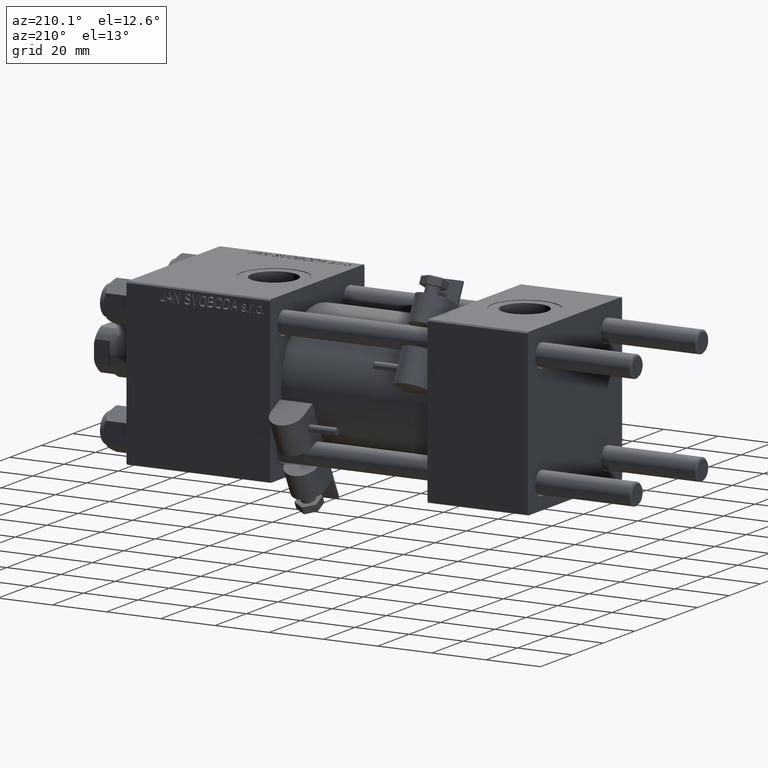
[diagram: clean part render]
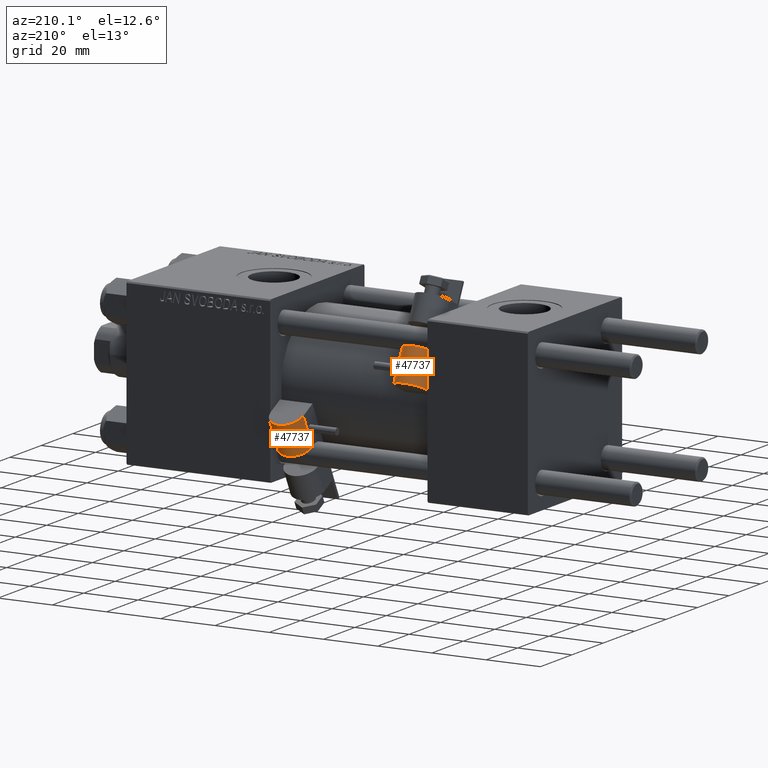
[diagram: same view with one multi-face feature highlighted, each face labeled with its STEP entity id]
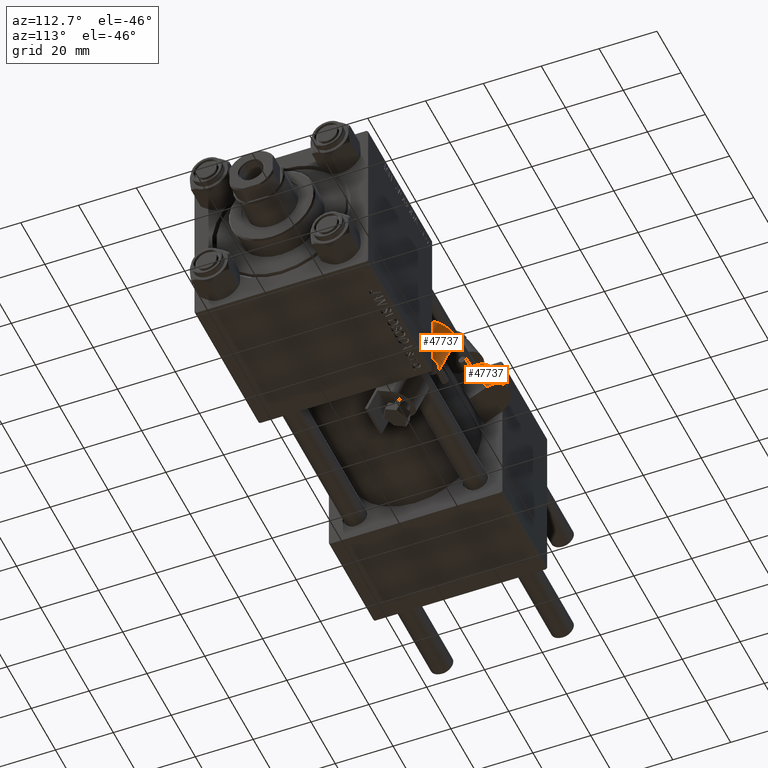
[diagram: same view with one multi-face feature highlighted, each face labeled with its STEP entity id]
A machine part, auxiliary view. The highlighted faces form ONE feature: a constant-radius fillet chain: 2 tangent blend faces with common blend radius 6 mm. The faces share edges in the B-rep.
A second angle (auxiliary view) of the same feature is appended — it is thin or edge-on in the first view.
Their STEP definitions:
[1] entity #47737 (Cylinder):
#692 = ORIENTED_EDGE ( 'NONE', *, *, #13905, .T. ) ;
#2031 = FACE_OUTER_BOUND ( 'NONE', #2946, .T. ) ;
#2946 = EDGE_LOOP ( 'NONE', ( #692, #18508, #50438, #24240 ) ) ;
#3751 = CARTESIAN_POINT ( 'NONE',  ( 30.23999999999999844, 6.500000000000000000, -5.999999999999980460 ) ) ;
#4156 = AXIS2_PLACEMENT_3D ( 'NONE', #33191, #29093, #13382 ) ;
#4977 = CARTESIAN_POINT ( 'NONE',  ( 17.73999999999999844, 6.500000000000000000, -5.999999999999980460 ) ) ;
#6452 = CARTESIAN_POINT ( 'NONE',  ( 30.23999999999999844, 6.500000000000000000, 2.255140518769849223E-14 ) ) ;
#7242 = CARTESIAN_POINT ( 'NONE',  ( 17.73999999999999844, 6.500000000000000000, 2.255140518769849223E-14 ) ) ;
#10668 = AXIS2_PLACEMENT_3D ( 'NONE', #7242, #46901, #43024 ) ;
#10765 = VERTEX_POINT ( 'NONE', #4977 ) ;
#13382 = DIRECTION ( 'NONE',  ( 0.000000000000000000, 0.000000000000000000, 1.000000000000000000 ) ) ;
#13905 = EDGE_CURVE ( 'NONE', #10765, #43345, #50154, .T. ) ;
#17550 = CARTESIAN_POINT ( 'NONE',  ( 17.73999999999999844, 6.499999999999999112, 6.000000000000006217 ) ) ;
#18508 = ORIENTED_EDGE ( 'NONE', *, *, #39719, .F. ) ;
#19980 = CARTESIAN_POINT ( 'NONE',  ( 30.23999999999999844, 6.500000000000000000, -5.999999999999980460 ) ) ;
#20096 = CARTESIAN_POINT ( 'NONE',  ( 30.23999999999999844, 6.499999999999999112, 6.000000000000006217 ) ) ;
#22927 = DIRECTION ( 'NONE',  ( 1.000000000000000000, 0.000000000000000000, 0.000000000000000000 ) ) ;
#23839 = DIRECTION ( 'NONE',  ( -1.000000000000000000, -0.000000000000000000, -0.000000000000000000 ) ) ;
#24240 = ORIENTED_EDGE ( 'NONE', *, *, #25517, .T. ) ;
#24287 = CARTESIAN_POINT ( 'NONE',  ( 30.23999999999999844, 6.499999999999999112, 6.000000000000006217 ) ) ;
#25429 = VERTEX_POINT ( 'NONE', #19980 ) ;
#25517 = EDGE_CURVE ( 'NONE', #25429, #10765, #35916, .T. ) ;
#29093 = DIRECTION ( 'NONE',  ( -1.000000000000000000, -0.000000000000000000, -0.000000000000000000 ) ) ;
#30396 = DIRECTION ( 'NONE',  ( 0.000000000000000000, 0.000000000000000000, -1.000000000000000000 ) ) ;
#33191 = CARTESIAN_POINT ( 'NONE',  ( 30.23999999999999844, 6.500000000000000000, 2.255140518769849223E-14 ) ) ;
#34744 = EDGE_CURVE ( 'NONE', #25429, #45205, #46640, .T. ) ;
#35782 = DIRECTION ( 'NONE',  ( -1.000000000000000000, -0.000000000000000000, -0.000000000000000000 ) ) ;
#35916 = LINE ( 'NONE', #3751, #40689 ) ;
#39719 = EDGE_CURVE ( 'NONE', #45205, #43345, #47388, .T. ) ;
#40689 = VECTOR ( 'NONE', #23839, 1000.000000000000000 ) ;
#43024 = DIRECTION ( 'NONE',  ( 0.000000000000000000, 0.000000000000000000, -1.000000000000000000 ) ) ;
#43345 = VERTEX_POINT ( 'NONE', #17550 ) ;
#44547 = CYLINDRICAL_SURFACE ( 'NONE', #4156, 6.000000000000002665 ) ;
#45135 = VECTOR ( 'NONE', #35782, 1000.000000000000000 ) ;
#45205 = VERTEX_POINT ( 'NONE', #24287 ) ;
#45797 = AXIS2_PLACEMENT_3D ( 'NONE', #6452, #22927, #30396 ) ;
#46640 = CIRCLE ( 'NONE', #45797, 6.000000000000002665 ) ;
#46901 = DIRECTION ( 'NONE',  ( 1.000000000000000000, 0.000000000000000000, 0.000000000000000000 ) ) ;
#47388 = LINE ( 'NONE', #20096, #45135 ) ;
#47737 = ADVANCED_FACE ( 'NONE', ( #2031 ), #44547, .T. ) ;
#50154 = CIRCLE ( 'NONE', #10668, 6.000000000000002665 ) ;
#50438 = ORIENTED_EDGE ( 'NONE', *, *, #34744, .F. ) ;
[2] entity #47737 (Cylinder):
#692 = ORIENTED_EDGE ( 'NONE', *, *, #13905, .T. ) ;
#2031 = FACE_OUTER_BOUND ( 'NONE', #2946, .T. ) ;
#2946 = EDGE_LOOP ( 'NONE', ( #692, #18508, #50438, #24240 ) ) ;
#3751 = CARTESIAN_POINT ( 'NONE',  ( 30.23999999999999844, 6.500000000000000000, -5.999999999999980460 ) ) ;
#4156 = AXIS2_PLACEMENT_3D ( 'NONE', #33191, #29093, #13382 ) ;
#4977 = CARTESIAN_POINT ( 'NONE',  ( 17.73999999999999844, 6.500000000000000000, -5.999999999999980460 ) ) ;
#6452 = CARTESIAN_POINT ( 'NONE',  ( 30.23999999999999844, 6.500000000000000000, 2.255140518769849223E-14 ) ) ;
#7242 = CARTESIAN_POINT ( 'NONE',  ( 17.73999999999999844, 6.500000000000000000, 2.255140518769849223E-14 ) ) ;
#10668 = AXIS2_PLACEMENT_3D ( 'NONE', #7242, #46901, #43024 ) ;
#10765 = VERTEX_POINT ( 'NONE', #4977 ) ;
#13382 = DIRECTION ( 'NONE',  ( 0.000000000000000000, 0.000000000000000000, 1.000000000000000000 ) ) ;
#13905 = EDGE_CURVE ( 'NONE', #10765, #43345, #50154, .T. ) ;
#17550 = CARTESIAN_POINT ( 'NONE',  ( 17.73999999999999844, 6.499999999999999112, 6.000000000000006217 ) ) ;
#18508 = ORIENTED_EDGE ( 'NONE', *, *, #39719, .F. ) ;
#19980 = CARTESIAN_POINT ( 'NONE',  ( 30.23999999999999844, 6.500000000000000000, -5.999999999999980460 ) ) ;
#20096 = CARTESIAN_POINT ( 'NONE',  ( 30.23999999999999844, 6.499999999999999112, 6.000000000000006217 ) ) ;
#22927 = DIRECTION ( 'NONE',  ( 1.000000000000000000, 0.000000000000000000, 0.000000000000000000 ) ) ;
#23839 = DIRECTION ( 'NONE',  ( -1.000000000000000000, -0.000000000000000000, -0.000000000000000000 ) ) ;
#24240 = ORIENTED_EDGE ( 'NONE', *, *, #25517, .T. ) ;
#24287 = CARTESIAN_POINT ( 'NONE',  ( 30.23999999999999844, 6.499999999999999112, 6.000000000000006217 ) ) ;
#25429 = VERTEX_POINT ( 'NONE', #19980 ) ;
#25517 = EDGE_CURVE ( 'NONE', #25429, #10765, #35916, .T. ) ;
#29093 = DIRECTION ( 'NONE',  ( -1.000000000000000000, -0.000000000000000000, -0.000000000000000000 ) ) ;
#30396 = DIRECTION ( 'NONE',  ( 0.000000000000000000, 0.000000000000000000, -1.000000000000000000 ) ) ;
#33191 = CARTESIAN_POINT ( 'NONE',  ( 30.23999999999999844, 6.500000000000000000, 2.255140518769849223E-14 ) ) ;
#34744 = EDGE_CURVE ( 'NONE', #25429, #45205, #46640, .T. ) ;
#35782 = DIRECTION ( 'NONE',  ( -1.000000000000000000, -0.000000000000000000, -0.000000000000000000 ) ) ;
#35916 = LINE ( 'NONE', #3751, #40689 ) ;
#39719 = EDGE_CURVE ( 'NONE', #45205, #43345, #47388, .T. ) ;
#40689 = VECTOR ( 'NONE', #23839, 1000.000000000000000 ) ;
#43024 = DIRECTION ( 'NONE',  ( 0.000000000000000000, 0.000000000000000000, -1.000000000000000000 ) ) ;
#43345 = VERTEX_POINT ( 'NONE', #17550 ) ;
#44547 = CYLINDRICAL_SURFACE ( 'NONE', #4156, 6.000000000000002665 ) ;
#45135 = VECTOR ( 'NONE', #35782, 1000.000000000000000 ) ;
#45205 = VERTEX_POINT ( 'NONE', #24287 ) ;
#45797 = AXIS2_PLACEMENT_3D ( 'NONE', #6452, #22927, #30396 ) ;
#46640 = CIRCLE ( 'NONE', #45797, 6.000000000000002665 ) ;
#46901 = DIRECTION ( 'NONE',  ( 1.000000000000000000, 0.000000000000000000, 0.000000000000000000 ) ) ;
#47388 = LINE ( 'NONE', #20096, #45135 ) ;
#47737 = ADVANCED_FACE ( 'NONE', ( #2031 ), #44547, .T. ) ;
#50154 = CIRCLE ( 'NONE', #10668, 6.000000000000002665 ) ;
#50438 = ORIENTED_EDGE ( 'NONE', *, *, #34744, .F. ) ;